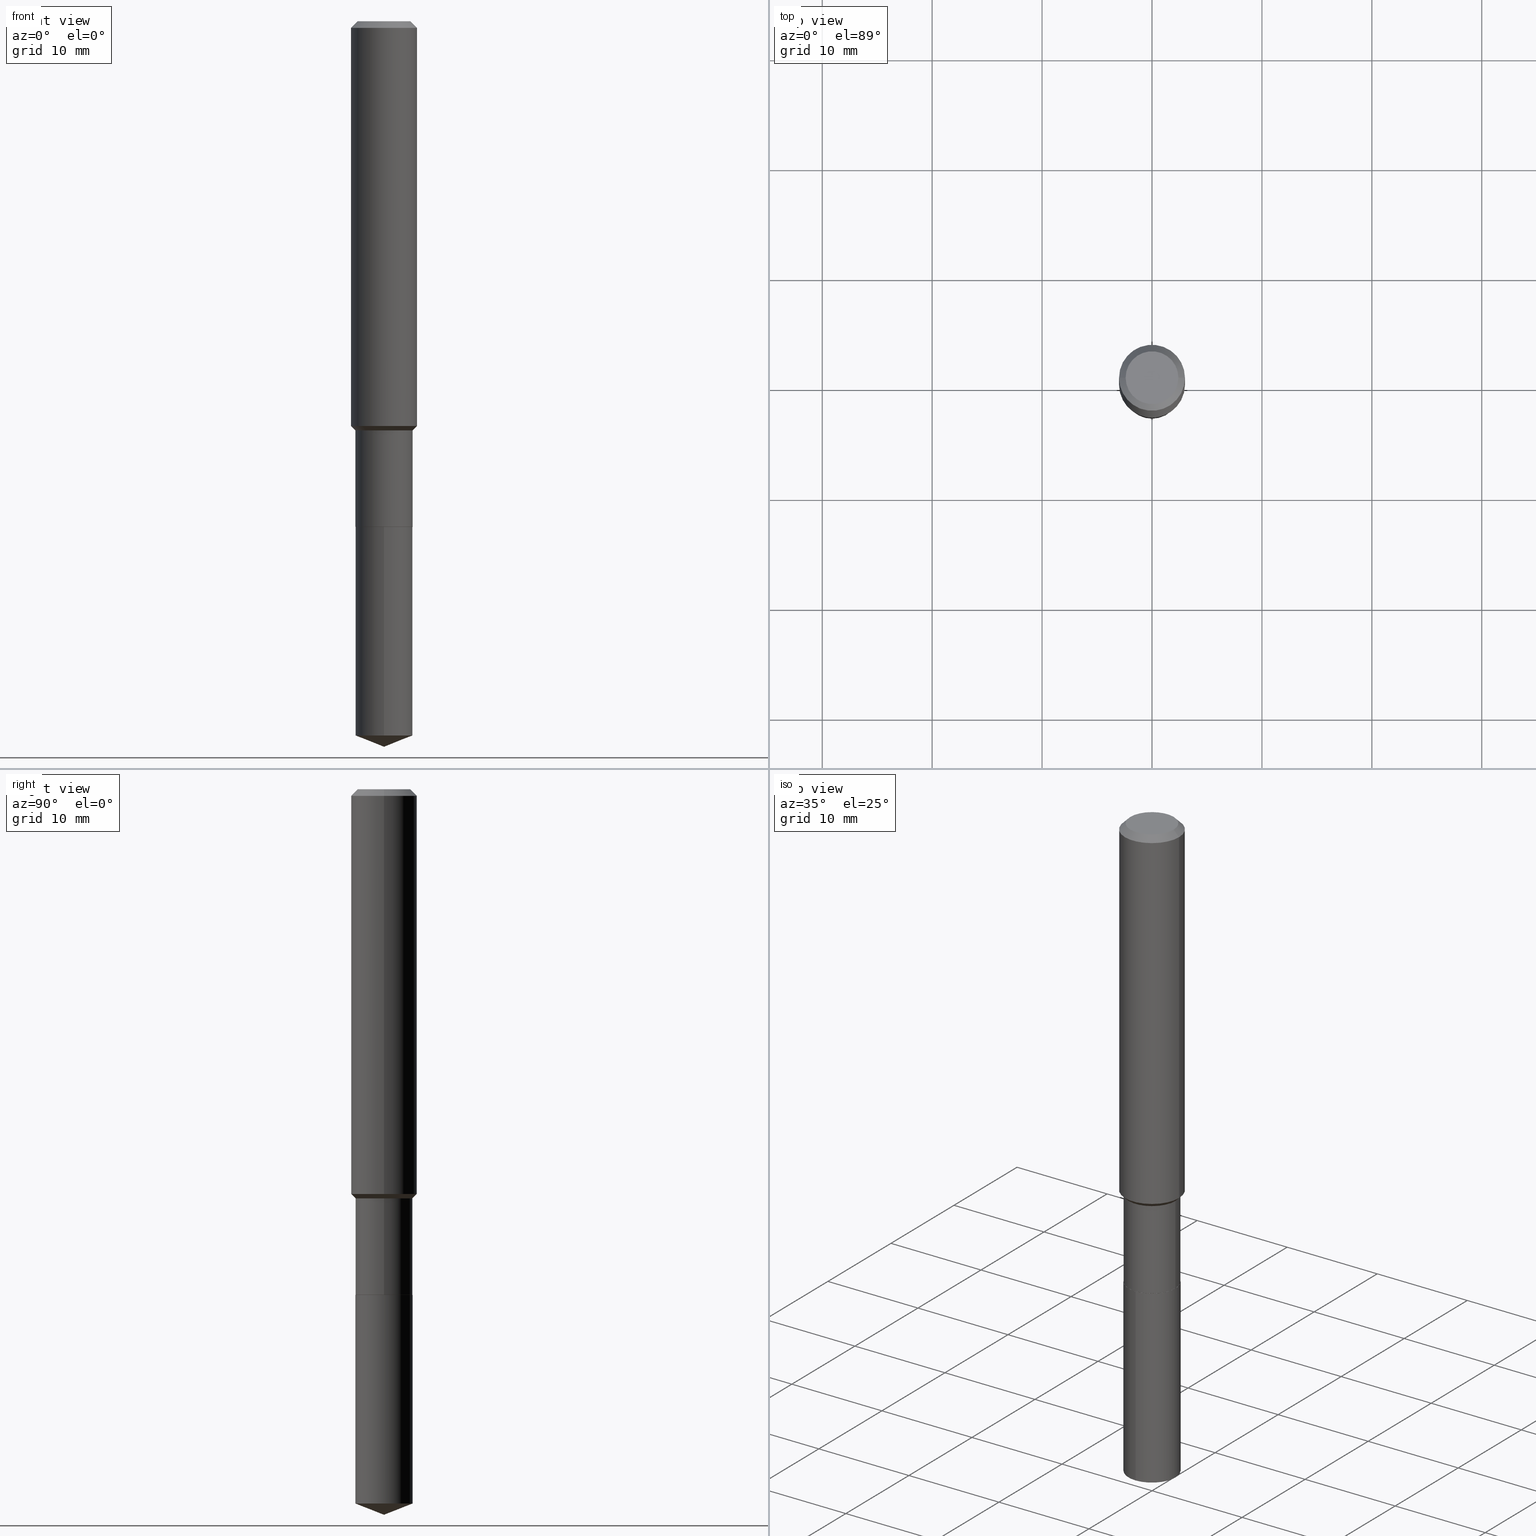
[diagram: canonical four-view strip — front | top / right | iso, engineering-drawing reading convention]
A machine part, canonical four-view strip (front | top / right | iso — engineering-drawing reading convention). The complete STEP part file that produces these views, byte-faithful:
ISO-10303-21;
HEADER;
FILE_DESCRIPTION (( 'STEP AP203' ),
    '1' );
FILE_NAME ('66422.STEP',
    '2024-04-24T22:30:54',
    ( '' ),
    ( '' ),
    'SwSTEP 2.0',
    'SolidWorks 2023',
    '' );
FILE_SCHEMA (( 'CONFIG_CONTROL_DESIGN' ));
ENDSEC;

DATA;
#1 = APPROVAL_DATE_TIME ( #404, #314 ) ;
#2 = CARTESIAN_POINT ( 'NONE',  ( 0.1023499999999999827, -7.147062300611892976E-16, 4.990766930027139796E-30 ) ) ;
#3 = COORDINATED_UNIVERSAL_TIME_OFFSET ( 5, 0, .BEHIND. ) ;
#4 = DIRECTION ( 'NONE',  ( -0.7071067811866199593, 7.493145998870616062E-15, 0.7071067811864750752 ) ) ;
#5 = CARTESIAN_POINT ( 'NONE',  ( 3.544829308005663759E-29, -5.061076774720079395E-15, -1.449549999999999672 ) ) ;
#6 = VECTOR ( 'NONE', #4, 39.37007874015748143 ) ;
#7 = CYLINDRICAL_SURFACE ( 'NONE', #465, 0.1023499999999999827 ) ;
#8 = CARTESIAN_POINT ( 'NONE',  ( -0.1180999999999999966, -1.732621811039098046E-15, -0.02362000000000014088 ) ) ;
#9 = AXIS2_PLACEMENT_3D ( 'NONE', #137, #375, #173 ) ;
#10 = LINE ( 'NONE', #156, #126 ) ;
#11 = CIRCLE ( 'NONE', #223, 0.1018499999999999961 ) ;
#12 = DIRECTION ( 'NONE',  ( -6.982962677686265922E-15, -1.000000000000000000, 2.669123589315352370E-15 ) ) ;
#13 = ORIENTED_EDGE ( 'NONE', *, *, #187, .T. ) ;
#14 = ORIENTED_EDGE ( 'NONE', *, *, #45, .F. ) ;
#15 = DIRECTION ( 'NONE',  ( -6.982962677686265922E-15, -1.000000000000000000, 2.669123589315352370E-15 ) ) ;
#16 = ORIENTED_EDGE ( 'NONE', *, *, #387, .T. ) ;
#17 = ADVANCED_FACE ( 'NONE', ( #381 ), #50, .T. ) ;
#18 = SHAPE_DEFINITION_REPRESENTATION ( #311, #288 ) ;
#19 = DIRECTION ( 'NONE',  ( -2.445468806185136597E-29, 3.491481338843145583E-15, 1.000000000000000000 ) ) ;
#20 = ORIENTED_EDGE ( 'NONE', *, *, #63, .F. ) ;
#21 = VECTOR ( 'NONE', #430, 39.37007874015748143 ) ;
#22 = LOCAL_TIME ( 18, 30, 54.00000000000000000, #34 ) ;
#23 = CC_DESIGN_PERSON_AND_ORGANIZATION_ASSIGNMENT ( #340, #416, ( #291 ) ) ;
#24 = FACE_OUTER_BOUND ( 'NONE', #390, .T. ) ;
#25 = CARTESIAN_POINT ( 'NONE',  ( 0.1180999999999999966, -9.071566814582237199E-16, -0.02362000000000014088 ) ) ;
#26 =( CONVERSION_BASED_UNIT ( 'INCH', #207 ) LENGTH_UNIT ( ) NAMED_UNIT ( #412 ) );
#27 = CARTESIAN_POINT ( 'NONE',  ( 3.544829308005663759E-29, -5.061076774720079395E-15, -1.449549999999999672 ) ) ;
#28 = FACE_OUTER_BOUND ( 'NONE', #471, .T. ) ;
#29 = EDGE_CURVE ( 'NONE', #326, #347, #414, .T. ) ;
#30 = CALENDAR_DATE ( 2024, 24, 4 ) ;
#31 = CIRCLE ( 'NONE', #368, 0.1023499999999999688 ) ;
#32 = CYLINDRICAL_SURFACE ( 'NONE', #479, 0.1181000000000000799 ) ;
#33 = PRODUCT_DEFINITION ( 'UNKNOWN', '', #291, #90 ) ;
#34 = COORDINATED_UNIVERSAL_TIME_OFFSET ( 5, 0, .BEHIND. ) ;
#35 = ORIENTED_EDGE ( 'NONE', *, *, #370, .F. ) ;
#36 = ORIENTED_EDGE ( 'NONE', *, *, #466, .T. ) ;
#37 = CARTESIAN_POINT ( 'NONE',  ( 2.358133508849003952E-46, -3.366789680499277518E-32, -9.642868896486260050E-18 ) ) ;
#38 = DIRECTION ( 'NONE',  ( -2.445468806185136597E-29, 3.491481338843145583E-15, 1.000000000000000000 ) ) ;
#39 = AXIS2_PLACEMENT_3D ( 'NONE', #169, #306, #253 ) ;
#40 = LOCAL_TIME ( 18, 30, 54.00000000000000000, #434 ) ;
#41 = DIRECTION ( 'NONE',  ( 1.000000000000000000, -6.982962677686270655E-15, 0.000000000000000000 ) ) ;
#42 = PERSON_AND_ORGANIZATION_ROLE ( 'design_supplier' ) ;
#43 = CARTESIAN_POINT ( 'NONE',  ( 4.716267017698007905E-46, -6.733579360998555036E-32, -1.928573779297252010E-17 ) ) ;
#44 = PRODUCT ( '66422', '66422', '', ( #485 ) ) ;
#45 = EDGE_CURVE ( 'NONE', #347, #326, #441, .T. ) ;
#46 = AXIS2_PLACEMENT_3D ( 'NONE', #384, #95, #282 ) ;
#47 = CIRCLE ( 'NONE', #329, 0.1023499999999999965 ) ;
#48 = EDGE_CURVE ( 'NONE', #383, #62, #93, .T. ) ;
#49 = ORIENTED_EDGE ( 'NONE', *, *, #283, .T. ) ;
#50 = CONICAL_SURFACE ( 'NONE', #257, 99.94676754583795741, 1.195550537616112630 ) ;
#51 = AXIS2_PLACEMENT_3D ( 'NONE', #122, #380, #12 ) ;
#52 = EDGE_CURVE ( 'NONE', #373, #94, #458, .T. ) ;
#53 = DIRECTION ( 'NONE',  ( 0.7071067811865467956, -2.468850131082249172E-15, 0.7071067811865482389 ) ) ;
#54 = EDGE_LOOP ( 'NONE', ( #280, #146 ) ) ;
#55 = EDGE_CURVE ( 'NONE', #255, #321, #152, .T. ) ;
#56 = ORIENTED_EDGE ( 'NONE', *, *, #89, .T. ) ;
#57 = APPROVAL_STATUS ( 'not_yet_approved' ) ;
#58 = CARTESIAN_POINT ( 'NONE',  ( -0.1181000000000000799, 8.391509709326788873E-16, -5.809262341591047988E-30 ) ) ;
#59 = EDGE_LOOP ( 'NONE', ( #20, #411, #410, #202 ) ) ;
#60 = CIRCLE ( 'NONE', #154, 0.1180999999999999966 ) ;
#61 = SECURITY_CLASSIFICATION ( '', '', #184 ) ;
#62 = VERTEX_POINT ( 'NONE', #353 ) ;
#63 = EDGE_CURVE ( 'NONE', #402, #303, #160, .T. ) ;
#64 = CARTESIAN_POINT ( 'NONE',  ( 6.354596626871842033E-29, -9.071849125696174722E-15, -2.598399999999999821 ) ) ;
#65 = CARTESIAN_POINT ( 'NONE',  ( 0.1180999999999999966, -8.926936027602933910E-16, -0.02362000000000014088 ) ) ;
#66 = CARTESIAN_POINT ( 'NONE',  ( 3.583345441703080279E-29, -5.116067605806860307E-15, -1.465299999999999825 ) ) ;
#67 = CALENDAR_DATE ( 2024, 24, 4 ) ;
#68 = CYLINDRICAL_SURFACE ( 'NONE', #51, 0.1023499999999999965 ) ;
#69 = LOCAL_TIME ( 18, 30, 54.00000000000000000, #217 ) ;
#70 = FACE_OUTER_BOUND ( 'NONE', #247, .T. ) ;
#71 = COORDINATED_UNIVERSAL_TIME_OFFSET ( 5, 0, .BEHIND. ) ;
#72 = DIRECTION ( 'NONE',  ( -6.497071151882101692E-15, -0.9304175679820220202, 0.3665012267243034638 ) ) ;
#73 = CARTESIAN_POINT ( 'NONE',  ( 4.428744008001282238E-29, -6.323072704644935995E-15, -1.810999999999999943 ) ) ;
#74 = AXIS2_PLACEMENT_3D ( 'NONE', #5, #80, #41 ) ;
#75 = CARTESIAN_POINT ( 'NONE',  ( 0.000000000000000000, 0.000000000000000000, 0.000000000000000000 ) ) ;
#76 = DIRECTION ( 'NONE',  ( -6.982962677686265922E-15, -1.000000000000000000, 2.669123589315352370E-15 ) ) ;
#77 = CARTESIAN_POINT ( 'NONE',  ( 4.716267017698007905E-46, -6.733579360998555036E-32, -1.928573779297252010E-17 ) ) ;
#78 = ADVANCED_FACE ( 'NONE', ( #240 ), #192, .T. ) ;
#79 = DATE_TIME_ROLE ( 'classification_date' ) ;
#80 = DIRECTION ( 'NONE',  ( -2.445468806185136597E-29, 3.491481338843145583E-15, 1.000000000000000000 ) ) ;
#81 = VECTOR ( 'NONE', #53, 39.37007874015748143 ) ;
#82 = CIRCLE ( 'NONE', #213, 0.09447999999999998066 ) ;
#83 = ORIENTED_EDGE ( 'NONE', *, *, #298, .T. ) ;
#84 = ADVANCED_FACE ( 'NONE', ( #70 ), #128, .T. ) ;
#85 = EDGE_LOOP ( 'NONE', ( #363, #392, #285, #56 ) ) ;
#86 = CARTESIAN_POINT ( 'NONE',  ( 4.427521273598189436E-29, -6.321326963975514491E-15, -1.810499999999999998 ) ) ;
#87 = DIRECTION ( 'NONE',  ( -2.445580598395875501E-29, 3.491321246034550326E-15, 1.000000000000000000 ) ) ;
#88 = ORIENTED_EDGE ( 'NONE', *, *, #52, .T. ) ;
#89 = EDGE_CURVE ( 'NONE', #303, #100, #60, .T. ) ;
#90 = DESIGN_CONTEXT ( 'detailed design', #275, 'design' ) ;
#91 = AXIS2_PLACEMENT_3D ( 'NONE', #27, #168, #444 ) ;
#92 = CALENDAR_DATE ( 2024, 24, 4 ) ;
#93 = LINE ( 'NONE', #234, #81 ) ;
#94 = VERTEX_POINT ( 'NONE', #138 ) ;
#95 = DIRECTION ( 'NONE',  ( -2.445580598395875501E-29, 3.491321246034550326E-15, 1.000000000000000000 ) ) ;
#96 = PERSON ( 'UNSPECIFIED', 'UNSPECIFIED', 'UNSPECIFIED', ('UNSPECIFIED'), ('UNSPECIFIED'), ('UNSPECIFIED') ) ;
#97 = CIRCLE ( 'NONE', #337, 0.1023499999999999965 ) ;
#98 = CYLINDRICAL_SURFACE ( 'NONE', #39, 0.1023499999999999827 ) ;
#99 = DIRECTION ( 'NONE',  ( -2.445468806185136597E-29, 3.491481338843145583E-15, 1.000000000000000000 ) ) ;
#100 = VERTEX_POINT ( 'NONE', #25 ) ;
#101 = DIRECTION ( 'NONE',  ( -2.445468806185136877E-29, 3.491481338843145188E-15, 1.000000000000000000 ) ) ;
#102 =( NAMED_UNIT ( * ) PLANE_ANGLE_UNIT ( ) SI_UNIT ( $, .RADIAN. ) );
#103 = EDGE_LOOP ( 'NONE', ( #396, #194, #139, #389 ) ) ;
#104 = FACE_OUTER_BOUND ( 'NONE', #429, .T. ) ;
#105 = ADVANCED_FACE ( 'NONE', ( #178 ), #294, .F. ) ;
#106 = DIRECTION ( 'NONE',  ( 1.000000000000000000, -6.982962677686266711E-15, 4.876176775795936353E-29 ) ) ;
#107 = DATE_AND_TIME ( #30, #453 ) ;
#108 = CARTESIAN_POINT ( 'NONE',  ( -8.992830655306888007E-28, 1.283814533097924316E-13, 36.77167874015748339 ) ) ;
#109 = AXIS2_PLACEMENT_3D ( 'NONE', #242, #204, #359 ) ;
#110 = APPROVAL_PERSON_ORGANIZATION ( #455, #273, #116 ) ;
#111 = ADVANCED_FACE ( 'NONE', ( #369 ), #487, .T. ) ;
#112 = VERTEX_POINT ( 'NONE', #406 ) ;
#113 = CARTESIAN_POINT ( 'NONE',  ( 0.1018499999999999961, -7.034287453367281792E-15, -1.810999999999999943 ) ) ;
#114 = ORIENTED_EDGE ( 'NONE', *, *, #45, .T. ) ;
#115 = DIRECTION ( 'NONE',  ( -2.445580598395875221E-29, 3.491321246034550326E-15, 1.000000000000000000 ) ) ;
#116 = APPROVAL_ROLE ( '' ) ;
#117 = EDGE_CURVE ( 'NONE', #163, #373, #325, .T. ) ;
#118 = FACE_OUTER_BOUND ( 'NONE', #424, .T. ) ;
#119 = AXIS2_PLACEMENT_3D ( 'NONE', #131, #286, #200 ) ;
#120 = PRODUCT_RELATED_PRODUCT_CATEGORY ( 'detail', '', ( #44 ) ) ;
#121 = CYLINDRICAL_SURFACE ( 'NONE', #245, 0.1181000000000000799 ) ;
#122 = CARTESIAN_POINT ( 'NONE',  ( 4.428744008001282238E-29, -6.323072704644935995E-15, -1.810999999999999943 ) ) ;
#123 = CARTESIAN_POINT ( 'NONE',  ( 6.255796340942141358E-29, -8.931380372688045431E-15, -2.558083262820809889 ) ) ;
#124 = EDGE_CURVE ( 'NONE', #354, #112, #427, .T. ) ;
#125 = VECTOR ( 'NONE', #249, 39.37007874015748143 ) ;
#126 = VECTOR ( 'NONE', #315, 39.37007874015748143 ) ;
#127 = EDGE_CURVE ( 'NONE', #326, #383, #186, .T. ) ;
#128 = CONICAL_SURFACE ( 'NONE', #188, 0.1023499999999999688, 0.7853981633974472798 ) ;
#129 = ORIENTED_EDGE ( 'NONE', *, *, #378, .T. ) ;
#130 = AXIS2_PLACEMENT_3D ( 'NONE', #175, #227, #76 ) ;
#131 = CARTESIAN_POINT ( 'NONE',  ( 4.427521273598189436E-29, -6.321326963975514491E-15, -1.810499999999999998 ) ) ;
#132 = FACE_OUTER_BOUND ( 'NONE', #54, .T. ) ;
#133 = ORIENTED_EDGE ( 'NONE', *, *, #48, .F. ) ;
#134 = EDGE_LOOP ( 'NONE', ( #251, #36 ) ) ;
#135 = DIRECTION ( 'NONE',  ( 1.000000000000000000, -6.982962677686262766E-15, 0.000000000000000000 ) ) ;
#136 = VECTOR ( 'NONE', #445, 39.37007874015748143 ) ;
#137 = CARTESIAN_POINT ( 'NONE',  ( 5.776197320209327532E-31, -8.246878922347559293E-17, -0.02362000000000014088 ) ) ;
#138 = CARTESIAN_POINT ( 'NONE',  ( -7.147062300611268790E-16, -0.1023500000000089477, -2.558083262820809445 ) ) ;
#139 = ORIENTED_EDGE ( 'NONE', *, *, #29, .F. ) ;
#140 = ADVANCED_FACE ( 'NONE', ( #24 ), #121, .T. ) ;
#141 = CARTESIAN_POINT ( 'NONE',  ( 4.428744008001282238E-29, -6.323072704644935995E-15, -1.810999999999999943 ) ) ;
#142 = CARTESIAN_POINT ( 'NONE',  ( 4.428744008001282238E-29, -6.323072704644935995E-15, -1.810999999999999943 ) ) ;
#143 = AXIS2_PLACEMENT_3D ( 'NONE', #108, #221, #405 ) ;
#144 =( NAMED_UNIT ( * ) SI_UNIT ( $, .STERADIAN. ) SOLID_ANGLE_UNIT ( ) );
#145 = ORIENTED_EDGE ( 'NONE', *, *, #335, .F. ) ;
#146 = ORIENTED_EDGE ( 'NONE', *, *, #55, .F. ) ;
#147 = DIRECTION ( 'NONE',  ( 0.7071067811865459074, -7.319954787623249734E-15, -0.7071067811865491270 ) ) ;
#148 = PERSON_AND_ORGANIZATION_ROLE ( 'classification_officer' ) ;
#149 = VERTEX_POINT ( 'NONE', #478 ) ;
#150 = CARTESIAN_POINT ( 'NONE',  ( -0.1023499999999999965, -4.991456794840725672E-15, -1.810499999999999998 ) ) ;
#151 = CARTESIAN_POINT ( 'NONE',  ( 6.354600177466749068E-29, -9.071849125696174722E-15, -2.598399999999999821 ) ) ;
#152 = CIRCLE ( 'NONE', #230, 0.1018499999999999961 ) ;
#153 = CARTESIAN_POINT ( 'NONE',  ( 0.000000000000000000, 0.000000000000000000, 0.000000000000000000 ) ) ;
#154 = AXIS2_PLACEMENT_3D ( 'NONE', #362, #99, #215 ) ;
#155 =( GEOMETRIC_REPRESENTATION_CONTEXT ( 3 ) GLOBAL_UNCERTAINTY_ASSIGNED_CONTEXT ( ( #420 ) ) GLOBAL_UNIT_ASSIGNED_CONTEXT ( ( #26, #102, #144 ) ) REPRESENTATION_CONTEXT ( 'NONE', 'WORKASPACE' ) );
#156 = CARTESIAN_POINT ( 'NONE',  ( -7.147062300611450228E-16, -0.1023500000000063248, -1.810999999999999721 ) ) ;
#157 = ORIENTED_EDGE ( 'NONE', *, *, #127, .F. ) ;
#158 = EDGE_CURVE ( 'NONE', #383, #450, #385, .T. ) ;
#159 = ORIENTED_EDGE ( 'NONE', *, *, #463, .T. ) ;
#160 = LINE ( 'NONE', #58, #21 ) ;
#161 = DIRECTION ( 'NONE',  ( 1.000000000000000000, -6.982962677686265922E-15, 0.000000000000000000 ) ) ;
#162 = CC_DESIGN_DATE_AND_TIME_ASSIGNMENT ( #107, #371, ( #33 ) ) ;
#163 = VERTEX_POINT ( 'NONE', #64 ) ;
#164 = CONICAL_SURFACE ( 'NONE', #386, 0.1018499999999999961, 0.7853981633975507526 ) ;
#165 = PLANE ( 'NONE',  #260 ) ;
#166 = LINE ( 'NONE', #293, #345 ) ;
#167 = DIRECTION ( 'NONE',  ( 1.000000000000000000, -6.982962677686266711E-15, 0.000000000000000000 ) ) ;
#168 = DIRECTION ( 'NONE',  ( -2.445468806185136597E-29, 3.491481338843145583E-15, 1.000000000000000000 ) ) ;
#169 = CARTESIAN_POINT ( 'NONE',  ( 0.000000000000000000, 0.000000000000000000, 0.000000000000000000 ) ) ;
#170 = ADVANCED_FACE ( 'NONE', ( #28 ), #308, .T. ) ;
#171 = PERSON_AND_ORGANIZATION ( #96, #236 ) ;
#172 = VECTOR ( 'NONE', #147, 39.37007874015748143 ) ;
#173 = DIRECTION ( 'NONE',  ( -1.000000000000000000, 6.982962677686266711E-15, 0.000000000000000000 ) ) ;
#174 = APPROVAL_STATUS ( 'not_yet_approved' ) ;
#175 = CARTESIAN_POINT ( 'NONE',  ( 4.428744008001282238E-29, -6.323072704644935995E-15, -1.810999999999999943 ) ) ;
#176 = APPROVAL_DATE_TIME ( #226, #273 ) ;
#177 = ORIENTED_EDGE ( 'NONE', *, *, #124, .F. ) ;
#178 = FACE_OUTER_BOUND ( 'NONE', #324, .T. ) ;
#179 = APPROVAL_ROLE ( '' ) ;
#180 = ORIENTED_EDGE ( 'NONE', *, *, #320, .F. ) ;
#181 = AXIS2_PLACEMENT_3D ( 'NONE', #43, #310, #377 ) ;
#182 = CC_DESIGN_APPROVAL ( #314, ( #291 ) ) ;
#183 = DIRECTION ( 'NONE',  ( 1.000000000000000000, -6.982962677686265922E-15, 0.000000000000000000 ) ) ;
#184 = SECURITY_CLASSIFICATION_LEVEL ( 'unclassified' ) ;
#185 = CARTESIAN_POINT ( 'NONE',  ( 0.09447999999999998066, -7.704367267948738690E-16, -1.928573779296752193E-17 ) ) ;
#186 = LINE ( 'NONE', #2, #300 ) ;
#187 = EDGE_CURVE ( 'NONE', #450, #402, #397, .T. ) ;
#188 = AXIS2_PLACEMENT_3D ( 'NONE', #66, #334, #328 ) ;
#189 = CC_DESIGN_APPROVAL ( #273, ( #33 ) ) ;
#190 = CARTESIAN_POINT ( 'NONE',  ( -0.1181000000000001632, -4.221925803787400409E-15, -1.449549999999999672 ) ) ;
#191 = CARTESIAN_POINT ( 'NONE',  ( -0.1023499999999999827, 7.272404900504624170E-16, -5.034530064875895945E-30 ) ) ;
#192 = CONICAL_SURFACE ( 'NONE', #109, 0.1180999999999999966, 0.7853981633974460586 ) ;
#193 = ADVANCED_FACE ( 'NONE', ( #327 ), #32, .T. ) ;
#194 = ORIENTED_EDGE ( 'NONE', *, *, #370, .T. ) ;
#195 = FACE_OUTER_BOUND ( 'NONE', #446, .T. ) ;
#196 = DIRECTION ( 'NONE',  ( 1.000000000000000000, -6.982962677686267499E-15, 4.875432709231658792E-29 ) ) ;
#197 = APPROVAL ( #57, 'UNSPECIFIED' ) ;
#198 = DIRECTION ( 'NONE',  ( 1.000000000000000000, -6.982962677686265922E-15, 0.000000000000000000 ) ) ;
#199 = EDGE_LOOP ( 'NONE', ( #439, #88, #159, #233 ) ) ;
#200 = DIRECTION ( 'NONE',  ( 1.000000000000000000, -6.982962677686270655E-15, 0.000000000000000000 ) ) ;
#201 = DIRECTION ( 'NONE',  ( -2.445468806185136597E-29, 3.491481338843145583E-15, 1.000000000000000000 ) ) ;
#202 = ORIENTED_EDGE ( 'NONE', *, *, #89, .F. ) ;
#203 = ADVANCED_FACE ( 'NONE', ( #118 ), #98, .T. ) ;
#204 = DIRECTION ( 'NONE',  ( 2.445468806185136597E-29, -3.491481338843145583E-15, -1.000000000000000000 ) ) ;
#205 = CIRCLE ( 'NONE', #460, 0.1180999999999999966 ) ;
#206 = DIRECTION ( 'NONE',  ( -2.445468806185136597E-29, 3.491481338843145583E-15, 1.000000000000000000 ) ) ;
#207 = LENGTH_MEASURE_WITH_UNIT ( LENGTH_MEASURE( 0.02539999999999999897 ), #476 );
#208 = CARTESIAN_POINT ( 'NONE',  ( 3.583345441703080279E-29, -5.116067605806860307E-15, -1.465299999999999825 ) ) ;
#209 = DIRECTION ( 'NONE',  ( 1.000000000000000000, -6.982962677686262766E-15, 0.000000000000000000 ) ) ;
#210 = DIRECTION ( 'NONE',  ( 2.438088387897960049E-29, -3.491481338843145188E-15, -1.000000000000000000 ) ) ;
#211 = AXIS2_PLACEMENT_3D ( 'NONE', #208, #448, #135 ) ;
#212 = PERSON_AND_ORGANIZATION ( #96, #236 ) ;
#213 = AXIS2_PLACEMENT_3D ( 'NONE', #77, #228, #196 ) ;
#214 = CARTESIAN_POINT ( 'NONE',  ( 0.1023499999999999965, -7.036033194036704874E-15, -1.810499999999999998 ) ) ;
#215 = DIRECTION ( 'NONE',  ( 1.000000000000000000, -6.982962677686266711E-15, 0.000000000000000000 ) ) ;
#216 = DIRECTION ( 'NONE',  ( 0.000000000000000000, 0.000000000000000000, 1.000000000000000000 ) ) ;
#217 = COORDINATED_UNIVERSAL_TIME_OFFSET ( 5, 0, .BEHIND. ) ;
#218 = ORIENTED_EDGE ( 'NONE', *, *, #335, .T. ) ;
#219 = CARTESIAN_POINT ( 'NONE',  ( 7.272404900505252301E-16, 0.1023499999999911009, -2.558083262820810777 ) ) ;
#220 = ADVANCED_FACE ( 'NONE', ( #272 ), #344, .T. ) ;
#221 = DIRECTION ( 'NONE',  ( -2.445580598395875501E-29, 3.491321246034550326E-15, 1.000000000000000000 ) ) ;
#222 = AXIS2_PLACEMENT_3D ( 'NONE', #225, #342, #209 ) ;
#223 = AXIS2_PLACEMENT_3D ( 'NONE', #395, #206, #161 ) ;
#224 = EDGE_CURVE ( 'NONE', #402, #62, #290, .T. ) ;
#225 = CARTESIAN_POINT ( 'NONE',  ( 3.583345441703080279E-29, -5.116067605806860307E-15, -1.465299999999999825 ) ) ;
#226 = DATE_AND_TIME ( #67, #69 ) ;
#227 = DIRECTION ( 'NONE',  ( -2.445580598395875501E-29, 3.491321246034550326E-15, 1.000000000000000000 ) ) ;
#228 = DIRECTION ( 'NONE',  ( -2.445468806185136597E-29, 3.491481338843145583E-15, 1.000000000000000000 ) ) ;
#229 = EDGE_CURVE ( 'NONE', #321, #326, #332, .T. ) ;
#230 = AXIS2_PLACEMENT_3D ( 'NONE', #238, #19, #198 ) ;
#231 = APPROVAL_PERSON_ORGANIZATION ( #171, #314, #179 ) ;
#232 = ADVANCED_FACE ( 'NONE', ( #417 ), #164, .T. ) ;
#233 = ORIENTED_EDGE ( 'NONE', *, *, #466, .F. ) ;
#234 = CARTESIAN_POINT ( 'NONE',  ( 0.1023499999999999688, -5.830773835868049112E-15, -1.465299999999999825 ) ) ;
#235 = ORIENTED_EDGE ( 'NONE', *, *, #387, .F. ) ;
#236 = ORGANIZATION ( 'UNSPECIFIED', 'UNSPECIFIED', '' ) ;
#237 = VECTOR ( 'NONE', #349, 39.37007874015748143 ) ;
#238 = CARTESIAN_POINT ( 'NONE',  ( 4.428744008001282238E-29, -6.323072704644935995E-15, -1.810999999999999943 ) ) ;
#239 = ORIENTED_EDGE ( 'NONE', *, *, #490, .T. ) ;
#240 = FACE_OUTER_BOUND ( 'NONE', #85, .T. ) ;
#241 = ORIENTED_EDGE ( 'NONE', *, *, #309, .T. ) ;
#242 = CARTESIAN_POINT ( 'NONE',  ( 5.776197320209327532E-31, -8.246878922347559293E-17, -0.02362000000000014088 ) ) ;
#243 = APPLICATION_CONTEXT ( 'configuration controlled 3d designs of mechanical parts and assemblies' ) ;
#244 = MANIFOLD_SOLID_BREP ( 'Body-Move/Copy2[2]', #267 ) ;
#245 = AXIS2_PLACEMENT_3D ( 'NONE', #367, #457, #106 ) ;
#246 = DIRECTION ( 'NONE',  ( 6.982962677686265922E-15, 1.000000000000000000, -3.491321246034550326E-15 ) ) ;
#247 = EDGE_LOOP ( 'NONE', ( #482, #218, #316, #426 ) ) ;
#248 = ORIENTED_EDGE ( 'NONE', *, *, #127, .T. ) ;
#249 = DIRECTION ( 'NONE',  ( 6.611014441532049234E-15, 0.9304175679820246847, 0.3665012267242969135 ) ) ;
#250 = DIRECTION ( 'NONE',  ( 2.445580598395874941E-29, -3.491321246034550326E-15, -1.000000000000000000 ) ) ;
#251 = ORIENTED_EDGE ( 'NONE', *, *, #339, .T. ) ;
#252 = ADVANCED_FACE ( 'NONE', ( #413 ), #358, .T. ) ;
#253 = DIRECTION ( 'NONE',  ( 1.000000000000000000, -6.982962677686266711E-15, 4.876176775795936353E-29 ) ) ;
#254 = APPLICATION_PROTOCOL_DEFINITION ( 'international standard', 'config_control_design', 1994, #243 ) ;
#255 = VERTEX_POINT ( 'NONE', #338 ) ;
#256 = CARTESIAN_POINT ( 'NONE',  ( 3.583345441703080279E-29, -5.116067605806860307E-15, -1.465299999999999825 ) ) ;
#257 = AXIS2_PLACEMENT_3D ( 'NONE', #433, #475, #425 ) ;
#258 = CALENDAR_DATE ( 2024, 24, 4 ) ;
#259 = ORIENTED_EDGE ( 'NONE', *, *, #339, .F. ) ;
#260 = AXIS2_PLACEMENT_3D ( 'NONE', #435, #440, #364 ) ;
#261 = CARTESIAN_POINT ( 'NONE',  ( 7.272404900505066918E-16, 0.1023499999999936821, -1.811000000000000165 ) ) ;
#262 = DIRECTION ( 'NONE',  ( -0.7071067811865459074, 2.468850131082240100E-15, -0.7071067811865491270 ) ) ;
#263 = ORIENTED_EDGE ( 'NONE', *, *, #490, .F. ) ;
#264 = ORIENTED_EDGE ( 'NONE', *, *, #456, .T. ) ;
#265 = DIRECTION ( 'NONE',  ( 1.000000000000000000, -6.982962677686265922E-15, 0.000000000000000000 ) ) ;
#266 = DIRECTION ( 'NONE',  ( 1.000000000000000000, -6.982962677686262766E-15, 0.000000000000000000 ) ) ;
#267 = CLOSED_SHELL ( 'NONE', ( #232, #220, #140, #170, #203, #419, #84, #193, #78, #105, #312, #252 ) ) ;
#268 = AXIS2_PLACEMENT_3D ( 'NONE', #73, #415, #183 ) ;
#269 = CARTESIAN_POINT ( 'NONE',  ( -7.147062300611450228E-16, -0.1023500000000063248, -1.810999999999999721 ) ) ;
#270 = EDGE_CURVE ( 'NONE', #62, #100, #166, .T. ) ;
#271 = DATE_AND_TIME ( #307, #302 ) ;
#272 = FACE_OUTER_BOUND ( 'NONE', #398, .T. ) ;
#273 = APPROVAL ( #174, 'UNSPECIFIED' ) ;
#274 = DIRECTION ( 'NONE',  ( -2.445580598395875501E-29, 3.491321246034550326E-15, 1.000000000000000000 ) ) ;
#275 = APPLICATION_CONTEXT ( 'configuration controlled 3d designs of mechanical parts and assemblies' ) ;
#276 = AXIS2_PLACEMENT_3D ( 'NONE', #86, #284, #317 ) ;
#277 = CIRCLE ( 'NONE', #91, 0.1181000000000001632 ) ;
#278 = ORIENTED_EDGE ( 'NONE', *, *, #52, .F. ) ;
#279 = LINE ( 'NONE', #191, #237 ) ;
#280 = ORIENTED_EDGE ( 'NONE', *, *, #486, .F. ) ;
#281 = ORIENTED_EDGE ( 'NONE', *, *, #117, .F. ) ;
#282 = DIRECTION ( 'NONE',  ( -6.982962677686265922E-15, -1.000000000000000000, 5.338247178630704739E-15 ) ) ;
#283 = EDGE_CURVE ( 'NONE', #354, #100, #400, .T. ) ;
#284 = DIRECTION ( 'NONE',  ( -2.445468806185136597E-29, 3.491481338843145583E-15, 1.000000000000000000 ) ) ;
#285 = ORIENTED_EDGE ( 'NONE', *, *, #346, .T. ) ;
#286 = DIRECTION ( 'NONE',  ( -2.445468806185136597E-29, 3.491481338843145583E-15, 1.000000000000000000 ) ) ;
#287 = APPROVAL_ROLE ( '' ) ;
#288 = ADVANCED_BREP_SHAPE_REPRESENTATION ( '66422', ( #418, #244, #350 ), #155 ) ;
#289 = CARTESIAN_POINT ( 'NONE',  ( -0.1023499999999999688, -4.388827115756398186E-15, -1.465299999999999825 ) ) ;
#290 = CIRCLE ( 'NONE', #74, 0.1181000000000001632 ) ;
#291 = PRODUCT_DEFINITION_FORMATION_WITH_SPECIFIED_SOURCE ( 'ANY', '', #44, .NOT_KNOWN. ) ;
#292 = ORIENTED_EDGE ( 'NONE', *, *, #117, .T. ) ;
#293 = CARTESIAN_POINT ( 'NONE',  ( 0.1181000000000000799, -8.246878922347486570E-16, 5.758764772215004644E-30 ) ) ;
#294 = PLANE ( 'NONE',  #422 ) ;
#295 = DIRECTION ( 'NONE',  ( -2.445468806185136597E-29, 3.491481338843145583E-15, 1.000000000000000000 ) ) ;
#296 = VERTEX_POINT ( 'NONE', #269 ) ;
#297 = LINE ( 'NONE', #261, #442 ) ;
#298 = EDGE_CURVE ( 'NONE', #112, #354, #82, .T. ) ;
#299 = DIRECTION ( 'NONE',  ( -2.445580598395875501E-29, 3.491321246034550326E-15, 1.000000000000000000 ) ) ;
#300 = VECTOR ( 'NONE', #462, 39.37007874015748143 ) ;
#301 = ORIENTED_EDGE ( 'NONE', *, *, #463, .F. ) ;
#302 = LOCAL_TIME ( 18, 30, 54.00000000000000000, #3 ) ;
#303 = VERTEX_POINT ( 'NONE', #8 ) ;
#304 = CARTESIAN_POINT ( 'NONE',  ( -0.1180999999999999966, 7.422191030112725094E-16, -0.02362000000000014088 ) ) ;
#305 = PERSON_AND_ORGANIZATION_ROLE ( 'design_owner' ) ;
#306 = DIRECTION ( 'NONE',  ( -2.445468806185136597E-29, 3.491481338843145583E-15, 1.000000000000000000 ) ) ;
#307 = CALENDAR_DATE ( 2024, 24, 4 ) ;
#308 = CONICAL_SURFACE ( 'NONE', #211, 0.1023499999999999688, 0.7853981633974472798 ) ;
#309 = EDGE_CURVE ( 'NONE', #94, #373, #97, .T. ) ;
#310 = DIRECTION ( 'NONE',  ( -2.445468806185136597E-29, 3.491481338843145583E-15, 1.000000000000000000 ) ) ;
#311 = PRODUCT_DEFINITION_SHAPE ( 'NONE', 'NONE',  #33 ) ;
#312 = ADVANCED_FACE ( 'NONE', ( #132 ), #165, .F. ) ;
#313 = CC_DESIGN_SECURITY_CLASSIFICATION ( #61, ( #291 ) ) ;
#314 = APPROVAL ( #488, 'UNSPECIFIED' ) ;
#315 = DIRECTION ( 'NONE',  ( -2.445580598395875221E-29, 3.491321246034550326E-15, 1.000000000000000000 ) ) ;
#316 = ORIENTED_EDGE ( 'NONE', *, *, #48, .T. ) ;
#317 = DIRECTION ( 'NONE',  ( 1.000000000000000000, -6.982962677686270655E-15, 0.000000000000000000 ) ) ;
#318 = CARTESIAN_POINT ( 'NONE',  ( 4.428744008001282238E-29, -6.323072704644935995E-15, -1.810999999999999943 ) ) ;
#319 = ORIENTED_EDGE ( 'NONE', *, *, #320, .T. ) ;
#320 = EDGE_CURVE ( 'NONE', #62, #402, #277, .T. ) ;
#321 = VERTEX_POINT ( 'NONE', #113 ) ;
#322 = CIRCLE ( 'NONE', #130, 0.1023499999999999965 ) ;
#323 = ORIENTED_EDGE ( 'NONE', *, *, #456, .F. ) ;
#324 = EDGE_LOOP ( 'NONE', ( #83, #489 ) ) ;
#325 = LINE ( 'NONE', #151, #125 ) ;
#326 = VERTEX_POINT ( 'NONE', #214 ) ;
#327 = FACE_OUTER_BOUND ( 'NONE', #59, .T. ) ;
#328 = DIRECTION ( 'NONE',  ( 1.000000000000000000, -6.982962677686262766E-15, 0.000000000000000000 ) ) ;
#329 = AXIS2_PLACEMENT_3D ( 'NONE', #467, #87, #15 ) ;
#330 = CC_DESIGN_DATE_AND_TIME_ASSIGNMENT ( #271, #79, ( #61 ) ) ;
#331 = ORIENTED_EDGE ( 'NONE', *, *, #346, .F. ) ;
#332 = LINE ( 'NONE', #361, #136 ) ;
#333 = LINE ( 'NONE', #304, #374 ) ;
#334 = DIRECTION ( 'NONE',  ( -2.445468806185136597E-29, 3.491481338843145583E-15, 1.000000000000000000 ) ) ;
#335 = EDGE_CURVE ( 'NONE', #450, #383, #31, .T. ) ;
#336 = ORIENTED_EDGE ( 'NONE', *, *, #29, .T. ) ;
#337 = AXIS2_PLACEMENT_3D ( 'NONE', #123, #274, #477 ) ;
#338 = CARTESIAN_POINT ( 'NONE',  ( -0.1018499999999999961, -5.596735701099162782E-15, -1.810999999999999943 ) ) ;
#339 = EDGE_CURVE ( 'NONE', #296, #149, #322, .T. ) ;
#340 = PERSON_AND_ORGANIZATION ( #96, #236 ) ;
#341 = LINE ( 'NONE', #408, #6 ) ;
#342 = DIRECTION ( 'NONE',  ( -2.445468806185136597E-29, 3.491481338843145583E-15, 1.000000000000000000 ) ) ;
#343 = CC_DESIGN_PERSON_AND_ORGANIZATION_ASSIGNMENT ( #459, #148, ( #61 ) ) ;
#344 = CONICAL_SURFACE ( 'NONE', #9, 0.1180999999999999966, 0.7853981633974460586 ) ;
#345 = VECTOR ( 'NONE', #101, 39.37007874015748143 ) ;
#346 = EDGE_CURVE ( 'NONE', #112, #303, #333, .T. ) ;
#347 = VERTEX_POINT ( 'NONE', #150 ) ;
#348 = EDGE_LOOP ( 'NONE', ( #235, #292, #352 ) ) ;
#349 = DIRECTION ( 'NONE',  ( -2.445468806185136877E-29, 3.491481338843145188E-15, 1.000000000000000000 ) ) ;
#350 = AXIS2_PLACEMENT_3D ( 'NONE', #75, #216, #407 ) ;
#351 = ORIENTED_EDGE ( 'NONE', *, *, #63, .T. ) ;
#352 = ORIENTED_EDGE ( 'NONE', *, *, #309, .F. ) ;
#353 = CARTESIAN_POINT ( 'NONE',  ( 0.1181000000000001632, -5.885764666954828446E-15, -1.449549999999999672 ) ) ;
#354 = VERTEX_POINT ( 'NONE', #185 ) ;
#355 = APPROVAL_DATE_TIME ( #431, #197 ) ;
#356 = ORIENTED_EDGE ( 'NONE', *, *, #158, .F. ) ;
#357 = VECTOR ( 'NONE', #365, 39.37007874015748143 ) ;
#358 = CONICAL_SURFACE ( 'NONE', #268, 0.1018499999999999961, 0.7853981633975507526 ) ;
#359 = DIRECTION ( 'NONE',  ( -1.000000000000000000, 6.982962677686266711E-15, 0.000000000000000000 ) ) ;
#360 = CARTESIAN_POINT ( 'NONE',  ( 5.776197320209327532E-31, -8.246878922347559293E-17, -0.02362000000000014088 ) ) ;
#361 = CARTESIAN_POINT ( 'NONE',  ( 0.1018499999999999961, -7.034287453367281792E-15, -1.810999999999999943 ) ) ;
#362 = CARTESIAN_POINT ( 'NONE',  ( 5.776197320209327532E-31, -8.246878922347559293E-17, -0.02362000000000014088 ) ) ;
#363 = ORIENTED_EDGE ( 'NONE', *, *, #283, .F. ) ;
#364 = DIRECTION ( 'NONE',  ( 1.000000000000000000, -6.982962677686265922E-15, 4.876176775795935793E-29 ) ) ;
#365 = DIRECTION ( 'NONE',  ( -0.7071067811865467956, 7.493145998870351005E-15, 0.7071067811865482389 ) ) ;
#366 = AXIS2_PLACEMENT_3D ( 'NONE', #142, #299, #454 ) ;
#367 = CARTESIAN_POINT ( 'NONE',  ( 0.000000000000000000, 0.000000000000000000, 0.000000000000000000 ) ) ;
#368 = AXIS2_PLACEMENT_3D ( 'NONE', #256, #38, #266 ) ;
#369 = FACE_OUTER_BOUND ( 'NONE', #199, .T. ) ;
#370 = EDGE_CURVE ( 'NONE', #255, #347, #341, .T. ) ;
#371 = DATE_TIME_ROLE ( 'creation_date' ) ;
#372 = LINE ( 'NONE', #447, #379 ) ;
#373 = VERTEX_POINT ( 'NONE', #219 ) ;
#374 = VECTOR ( 'NONE', #262, 39.37007874015748143 ) ;
#375 = DIRECTION ( 'NONE',  ( 2.445468806185136597E-29, -3.491481338843145583E-15, -1.000000000000000000 ) ) ;
#376 = PERSON_AND_ORGANIZATION ( #96, #236 ) ;
#377 = DIRECTION ( 'NONE',  ( 1.000000000000000000, -6.982962677686267499E-15, 4.875432709231658792E-29 ) ) ;
#378 = EDGE_CURVE ( 'NONE', #373, #149, #297, .T. ) ;
#379 = VECTOR ( 'NONE', #72, 39.37007874015748854 ) ;
#380 = DIRECTION ( 'NONE',  ( -2.445580598395875501E-29, 3.491321246034550326E-15, 1.000000000000000000 ) ) ;
#381 = FACE_OUTER_BOUND ( 'NONE', #472, .T. ) ;
#382 = CARTESIAN_POINT ( 'NONE',  ( -0.1023499999999999688, -4.991456794840725672E-15, -1.465299999999999825 ) ) ;
#383 = VERTEX_POINT ( 'NONE', #403 ) ;
#384 = CARTESIAN_POINT ( 'NONE',  ( 6.255796340942141358E-29, -8.931380372688045431E-15, -2.558083262820809889 ) ) ;
#385 = CIRCLE ( 'NONE', #222, 0.1023499999999999688 ) ;
#386 = AXIS2_PLACEMENT_3D ( 'NONE', #141, #295, #265 ) ;
#387 = EDGE_CURVE ( 'NONE', #163, #94, #372, .T. ) ;
#388 = EDGE_LOOP ( 'NONE', ( #35, #469, #474, #14 ) ) ;
#389 = ORIENTED_EDGE ( 'NONE', *, *, #229, .F. ) ;
#390 = EDGE_LOOP ( 'NONE', ( #319, #351, #263, #432 ) ) ;
#391 = FACE_OUTER_BOUND ( 'NONE', #134, .T. ) ;
#392 = ORIENTED_EDGE ( 'NONE', *, *, #298, .F. ) ;
#393 = ADVANCED_FACE ( 'NONE', ( #451 ), #473, .T. ) ;
#394 = CC_DESIGN_APPROVAL ( #197, ( #61 ) ) ;
#395 = CARTESIAN_POINT ( 'NONE',  ( 4.428744008001282238E-29, -6.323072704644935995E-15, -1.810999999999999943 ) ) ;
#396 = ORIENTED_EDGE ( 'NONE', *, *, #486, .T. ) ;
#397 = LINE ( 'NONE', #289, #357 ) ;
#398 = EDGE_LOOP ( 'NONE', ( #177, #49, #239, #331 ) ) ;
#399 = ADVANCED_FACE ( 'NONE', ( #104 ), #68, .T. ) ;
#400 = LINE ( 'NONE', #65, #172 ) ;
#401 = PERSON_AND_ORGANIZATION ( #96, #236 ) ;
#402 = VERTEX_POINT ( 'NONE', #190 ) ;
#403 = CARTESIAN_POINT ( 'NONE',  ( 0.1023499999999999688, -5.830773835868049112E-15, -1.465299999999999825 ) ) ;
#404 = DATE_AND_TIME ( #258, #22 ) ;
#405 = DIRECTION ( 'NONE',  ( -6.982962677686265922E-15, -1.000000000000000000, 3.498627837350074826E-15 ) ) ;
#406 = CARTESIAN_POINT ( 'NONE',  ( -0.09447999999999998066, 7.009847083995354710E-16, -1.928573779297727792E-17 ) ) ;
#407 = DIRECTION ( 'NONE',  ( 1.000000000000000000, 0.000000000000000000, 0.000000000000000000 ) ) ;
#408 = CARTESIAN_POINT ( 'NONE',  ( -0.1018499999999999961, -5.599384928273273983E-15, -1.810999999999999943 ) ) ;
#409 = APPLICATION_PROTOCOL_DEFINITION ( 'international standard', 'config_control_design', 1994, #275 ) ;
#410 = ORIENTED_EDGE ( 'NONE', *, *, #270, .T. ) ;
#411 = ORIENTED_EDGE ( 'NONE', *, *, #224, .T. ) ;
#412 = DIMENSIONAL_EXPONENTS ( 1.000000000000000000, 0.000000000000000000, 0.000000000000000000, 0.000000000000000000, 0.000000000000000000, 0.000000000000000000, 0.000000000000000000 ) ;
#413 = FACE_OUTER_BOUND ( 'NONE', #388, .T. ) ;
#414 = CIRCLE ( 'NONE', #276, 0.1023499999999999965 ) ;
#415 = DIRECTION ( 'NONE',  ( -2.445468806185136597E-29, 3.491481338843145583E-15, 1.000000000000000000 ) ) ;
#416 = PERSON_AND_ORGANIZATION_ROLE ( 'creator' ) ;
#417 = FACE_OUTER_BOUND ( 'NONE', #103, .T. ) ;
#418 = MANIFOLD_SOLID_BREP ( 'Body-Move/Copy2[1]', #452 ) ;
#419 = ADVANCED_FACE ( 'NONE', ( #195 ), #7, .T. ) ;
#420 = UNCERTAINTY_MEASURE_WITH_UNIT (LENGTH_MEASURE( 1.000000000000000082E-05 ), #26, 'distance_accuracy_value', 'NONE');
#421 = CC_DESIGN_PERSON_AND_ORGANIZATION_ASSIGNMENT ( #376, #42, ( #291 ) ) ;
#422 = AXIS2_PLACEMENT_3D ( 'NONE', #37, #210, #436 ) ;
#423 = APPROVAL_PERSON_ORGANIZATION ( #470, #197, #287 ) ;
#424 = EDGE_LOOP ( 'NONE', ( #336, #264, #356, #157 ) ) ;
#425 = DIRECTION ( 'NONE',  ( -6.982962677686265922E-15, -1.000000000000000000, 3.498627837350074826E-15 ) ) ;
#426 = ORIENTED_EDGE ( 'NONE', *, *, #224, .F. ) ;
#427 = CIRCLE ( 'NONE', #181, 0.09447999999999998066 ) ;
#428 = CC_DESIGN_PERSON_AND_ORGANIZATION_ASSIGNMENT ( #212, #449, ( #33 ) ) ;
#429 = EDGE_LOOP ( 'NONE', ( #241, #129, #259, #301 ) ) ;
#430 = DIRECTION ( 'NONE',  ( -2.445468806185136877E-29, 3.491481338843145188E-15, 1.000000000000000000 ) ) ;
#431 = DATE_AND_TIME ( #92, #40 ) ;
#432 = ORIENTED_EDGE ( 'NONE', *, *, #270, .F. ) ;
#433 = CARTESIAN_POINT ( 'NONE',  ( -8.992830655306888007E-28, 1.283814533097924316E-13, 36.77167874015748339 ) ) ;
#434 = COORDINATED_UNIVERSAL_TIME_OFFSET ( 5, 0, .BEHIND. ) ;
#435 = CARTESIAN_POINT ( 'NONE',  ( 4.428744008001282238E-29, -6.323072704644935995E-15, -1.810999999999999943 ) ) ;
#436 = DIRECTION ( 'NONE',  ( -1.000000000000000000, 6.982962677686265922E-15, -4.876176775795935793E-29 ) ) ;
#437 = CC_DESIGN_PERSON_AND_ORGANIZATION_ASSIGNMENT ( #401, #305, ( #44 ) ) ;
#438 = PLANE ( 'NONE',  #480 ) ;
#439 = ORIENTED_EDGE ( 'NONE', *, *, #378, .F. ) ;
#440 = DIRECTION ( 'NONE',  ( -2.438088387897960049E-29, 3.491481338843145188E-15, 1.000000000000000000 ) ) ;
#441 = CIRCLE ( 'NONE', #119, 0.1023499999999999965 ) ;
#442 = VECTOR ( 'NONE', #115, 39.37007874015748143 ) ;
#443 = DIRECTION ( 'NONE',  ( -2.445468806185136597E-29, 3.491481338843145583E-15, 1.000000000000000000 ) ) ;
#444 = DIRECTION ( 'NONE',  ( 1.000000000000000000, -6.982962677686270655E-15, 0.000000000000000000 ) ) ;
#445 = DIRECTION ( 'NONE',  ( 0.7071067811866199593, -2.468850131083015945E-15, 0.7071067811864750752 ) ) ;
#446 = EDGE_LOOP ( 'NONE', ( #323, #114, #248, #145 ) ) ;
#447 = CARTESIAN_POINT ( 'NONE',  ( 6.354191715484545882E-29, -9.072428981848907706E-15, -2.598399999999999821 ) ) ;
#448 = DIRECTION ( 'NONE',  ( -2.445468806185136597E-29, 3.491481338843145583E-15, 1.000000000000000000 ) ) ;
#449 = PERSON_AND_ORGANIZATION_ROLE ( 'creator' ) ;
#450 = VERTEX_POINT ( 'NONE', #382 ) ;
#451 = FACE_OUTER_BOUND ( 'NONE', #348, .T. ) ;
#452 = CLOSED_SHELL ( 'NONE', ( #399, #393, #17, #111, #483 ) ) ;
#453 = LOCAL_TIME ( 18, 30, 54.00000000000000000, #71 ) ;
#454 = DIRECTION ( 'NONE',  ( -6.982962677686265922E-15, -1.000000000000000000, 2.669123589315352370E-15 ) ) ;
#455 = PERSON_AND_ORGANIZATION ( #96, #236 ) ;
#456 = EDGE_CURVE ( 'NONE', #347, #450, #279, .T. ) ;
#457 = DIRECTION ( 'NONE',  ( -2.445468806185136597E-29, 3.491481338843145583E-15, 1.000000000000000000 ) ) ;
#458 = CIRCLE ( 'NONE', #46, 0.1023499999999999965 ) ;
#459 = PERSON_AND_ORGANIZATION ( #96, #236 ) ;
#460 = AXIS2_PLACEMENT_3D ( 'NONE', #360, #201, #167 ) ;
#461 = DIRECTION ( 'NONE',  ( -2.445468806185136597E-29, 3.491481338843145583E-15, 1.000000000000000000 ) ) ;
#462 = DIRECTION ( 'NONE',  ( -2.445468806185136877E-29, 3.491481338843145188E-15, 1.000000000000000000 ) ) ;
#463 = EDGE_CURVE ( 'NONE', #94, #296, #10, .T. ) ;
#464 = DIRECTION ( 'NONE',  ( 1.000000000000000000, -6.982962677686266711E-15, 4.876176775795936353E-29 ) ) ;
#465 = AXIS2_PLACEMENT_3D ( 'NONE', #153, #461, #464 ) ;
#466 = EDGE_CURVE ( 'NONE', #149, #296, #47, .T. ) ;
#467 = CARTESIAN_POINT ( 'NONE',  ( 4.428744008001282238E-29, -6.323072704644935995E-15, -1.810999999999999943 ) ) ;
#468 = ORIENTED_EDGE ( 'NONE', *, *, #158, .T. ) ;
#469 = ORIENTED_EDGE ( 'NONE', *, *, #55, .T. ) ;
#470 = PERSON_AND_ORGANIZATION ( #96, #236 ) ;
#471 = EDGE_LOOP ( 'NONE', ( #468, #13, #180, #133 ) ) ;
#472 = EDGE_LOOP ( 'NONE', ( #281, #16, #278 ) ) ;
#473 = CONICAL_SURFACE ( 'NONE', #143, 99.94676754583795741, 1.195550537616112630 ) ;
#474 = ORIENTED_EDGE ( 'NONE', *, *, #229, .T. ) ;
#475 = DIRECTION ( 'NONE',  ( -2.445580598395875501E-29, 3.491321246034550326E-15, 1.000000000000000000 ) ) ;
#476 =( LENGTH_UNIT ( ) NAMED_UNIT ( * ) SI_UNIT ( $, .METRE. ) );
#477 = DIRECTION ( 'NONE',  ( -6.982962677686265922E-15, -1.000000000000000000, 5.338247178630704739E-15 ) ) ;
#478 = CARTESIAN_POINT ( 'NONE',  ( 7.272404900505251315E-16, 0.1023499999999936821, -1.811000000000000165 ) ) ;
#479 = AXIS2_PLACEMENT_3D ( 'NONE', #484, #443, #481 ) ;
#480 = AXIS2_PLACEMENT_3D ( 'NONE', #318, #250, #246 ) ;
#481 = DIRECTION ( 'NONE',  ( 1.000000000000000000, -6.982962677686266711E-15, 4.876176775795936353E-29 ) ) ;
#482 = ORIENTED_EDGE ( 'NONE', *, *, #187, .F. ) ;
#483 = ADVANCED_FACE ( 'NONE', ( #391 ), #438, .F. ) ;
#484 = CARTESIAN_POINT ( 'NONE',  ( 0.000000000000000000, 0.000000000000000000, 0.000000000000000000 ) ) ;
#485 = MECHANICAL_CONTEXT ( 'NONE', #243, 'mechanical' ) ;
#486 = EDGE_CURVE ( 'NONE', #321, #255, #11, .T. ) ;
#487 = CYLINDRICAL_SURFACE ( 'NONE', #366, 0.1023499999999999965 ) ;
#488 = APPROVAL_STATUS ( 'not_yet_approved' ) ;
#489 = ORIENTED_EDGE ( 'NONE', *, *, #124, .T. ) ;
#490 = EDGE_CURVE ( 'NONE', #100, #303, #205, .T. ) ;
ENDSEC;
END-ISO-10303-21;
